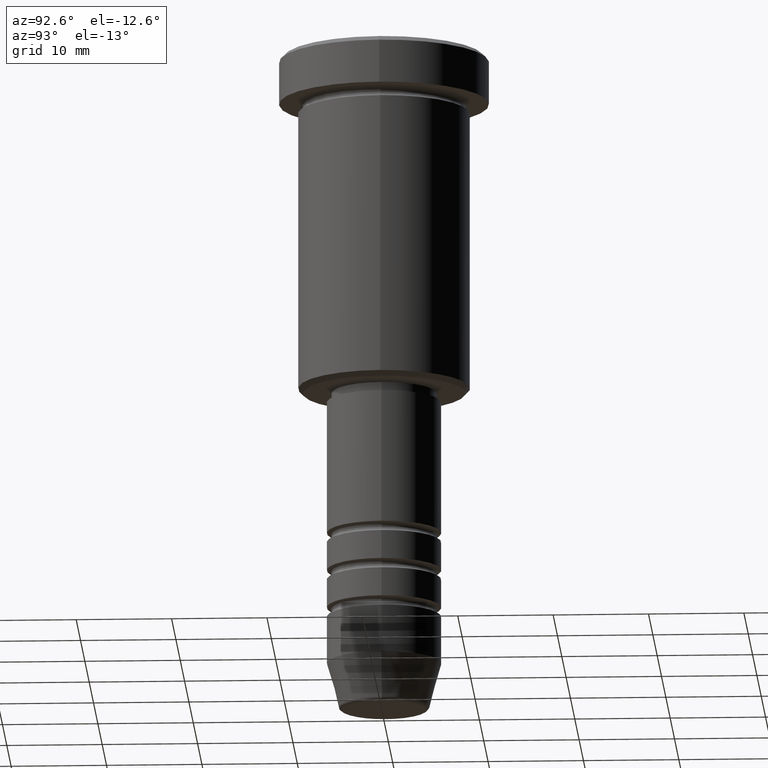
[diagram: clean part render]
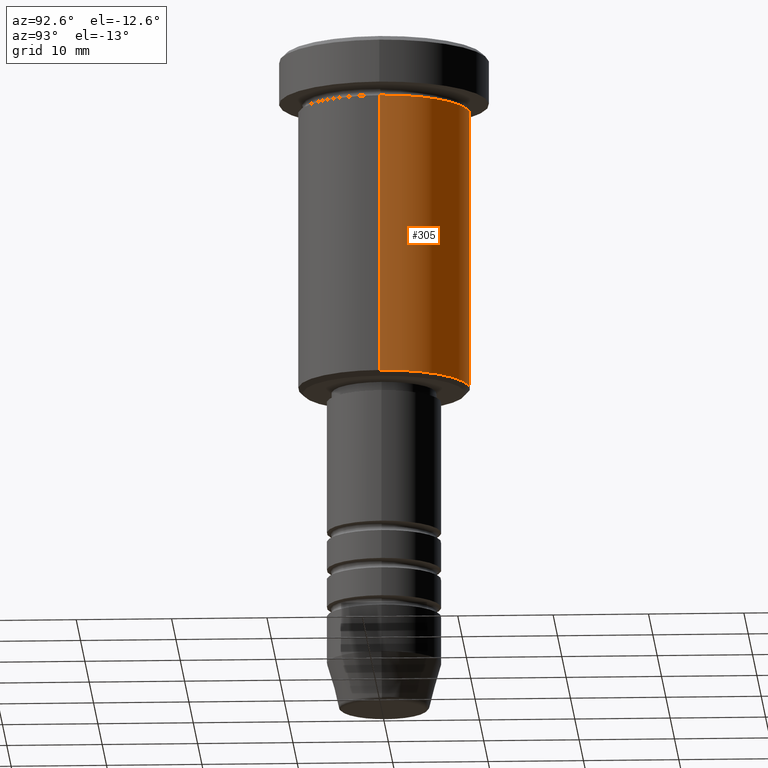
[diagram: same view with one face highlighted and labeled with its STEP entity id]
A machine part, auxiliary view. The second image highlights one B-rep face of the part: STEP entity #305.
In plain terms, the highlighted cylindrical surface (partial cylindrical patch) has radius 9 mm, axis along (-0, -0, 1).
Its self-contained STEP definition (entity closure, byte-faithful):
#44 = LINE ( 'NONE', #862, #1076 ) ;
#46 = DIRECTION ( 'NONE',  ( -0.000000000000000000, -0.000000000000000000, 1.000000000000000000 ) ) ;
#141 = DIRECTION ( 'NONE',  ( -0.000000000000000000, -0.000000000000000000, 1.000000000000000000 ) ) ;
#144 = ORIENTED_EDGE ( 'NONE', *, *, #654, .F. ) ;
#154 = CARTESIAN_POINT ( 'NONE',  ( -9.000000000000000000, 1.102182119232617714E-15, -35.50000000000000711 ) ) ;
#271 = DIRECTION ( 'NONE',  ( -0.000000000000000000, -0.000000000000000000, 1.000000000000000000 ) ) ;
#279 = FACE_OUTER_BOUND ( 'NONE', #444, .T. ) ;
#305 = ADVANCED_FACE ( 'NONE', ( #279 ), #1169, .T. ) ;
#313 = VECTOR ( 'NONE', #271, 1000.000000000000000 ) ;
#418 = DIRECTION ( 'NONE',  ( 1.000000000000000000, 0.000000000000000000, 0.000000000000000000 ) ) ;
#419 = CIRCLE ( 'NONE', #986, 9.000000000000000000 ) ;
#431 = ORIENTED_EDGE ( 'NONE', *, *, #765, .T. ) ;
#444 = EDGE_LOOP ( 'NONE', ( #431, #1069, #144, #698 ) ) ;
#455 = VERTEX_POINT ( 'NONE', #579 ) ;
#464 = CARTESIAN_POINT ( 'NONE',  ( 0.000000000000000000, 0.000000000000000000, 0.000000000000000000 ) ) ;
#519 = VERTEX_POINT ( 'NONE', #924 ) ;
#564 = DIRECTION ( 'NONE',  ( -0.000000000000000000, -0.000000000000000000, 1.000000000000000000 ) ) ;
#571 = AXIS2_PLACEMENT_3D ( 'NONE', #464, #46, #824 ) ;
#579 = CARTESIAN_POINT ( 'NONE',  ( 9.000000000000000000, 0.000000000000000000, -6.000000000000000000 ) ) ;
#603 = CARTESIAN_POINT ( 'NONE',  ( 0.000000000000000000, 0.000000000000000000, -6.000000000000000000 ) ) ;
#636 = AXIS2_PLACEMENT_3D ( 'NONE', #1002, #564, #997 ) ;
#654 = EDGE_CURVE ( 'NONE', #455, #753, #419, .T. ) ;
#670 = CIRCLE ( 'NONE', #636, 9.000000000000000000 ) ;
#674 = EDGE_CURVE ( 'NONE', #519, #455, #44, .T. ) ;
#698 = ORIENTED_EDGE ( 'NONE', *, *, #674, .F. ) ;
#753 = VERTEX_POINT ( 'NONE', #1041 ) ;
#765 = EDGE_CURVE ( 'NONE', #519, #1109, #670, .T. ) ;
#824 = DIRECTION ( 'NONE',  ( 1.000000000000000000, 0.000000000000000000, 0.000000000000000000 ) ) ;
#862 = CARTESIAN_POINT ( 'NONE',  ( 9.000000000000000000, 0.000000000000000000, 0.000000000000000000 ) ) ;
#888 = EDGE_CURVE ( 'NONE', #1109, #753, #1070, .T. ) ;
#924 = CARTESIAN_POINT ( 'NONE',  ( 9.000000000000000000, 0.000000000000000000, -35.50000000000000711 ) ) ;
#953 = DIRECTION ( 'NONE',  ( -0.000000000000000000, -0.000000000000000000, 1.000000000000000000 ) ) ;
#986 = AXIS2_PLACEMENT_3D ( 'NONE', #603, #953, #418 ) ;
#997 = DIRECTION ( 'NONE',  ( -1.000000000000000000, 0.000000000000000000, 0.000000000000000000 ) ) ;
#1002 = CARTESIAN_POINT ( 'NONE',  ( 0.000000000000000000, 0.000000000000000000, -35.50000000000000711 ) ) ;
#1041 = CARTESIAN_POINT ( 'NONE',  ( -9.000000000000000000, 1.102182119232617714E-15, -6.000000000000000000 ) ) ;
#1069 = ORIENTED_EDGE ( 'NONE', *, *, #888, .T. ) ;
#1070 = LINE ( 'NONE', #1167, #313 ) ;
#1076 = VECTOR ( 'NONE', #141, 1000.000000000000000 ) ;
#1109 = VERTEX_POINT ( 'NONE', #154 ) ;
#1167 = CARTESIAN_POINT ( 'NONE',  ( -9.000000000000000000, 1.102182119232617714E-15, 0.000000000000000000 ) ) ;
#1169 = CYLINDRICAL_SURFACE ( 'NONE', #571, 9.000000000000000000 ) ;